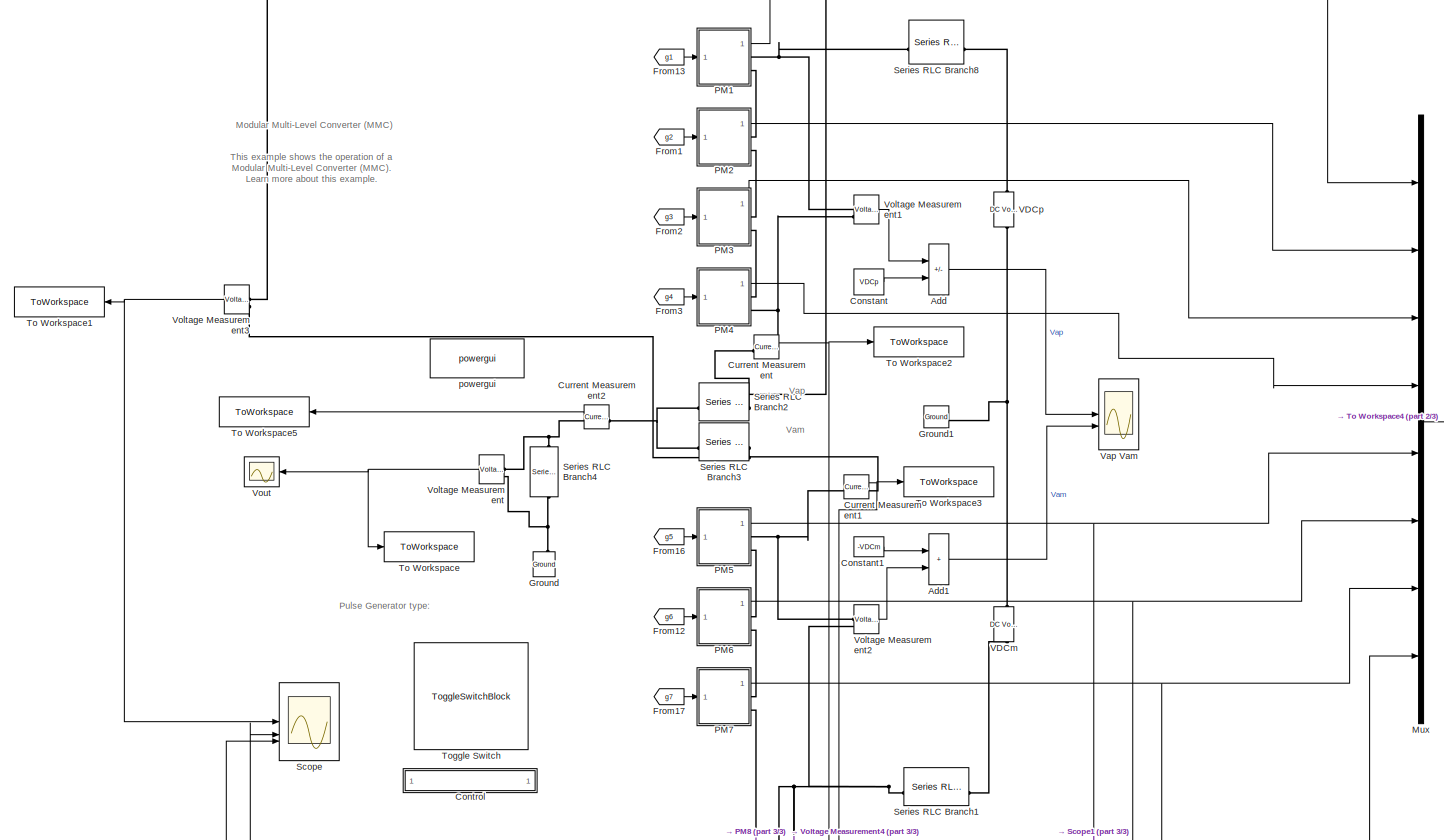
[diagram: root canvas - part 1/3, full width, middle band]
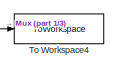
[diagram: root canvas - part 2/3, middle right region]
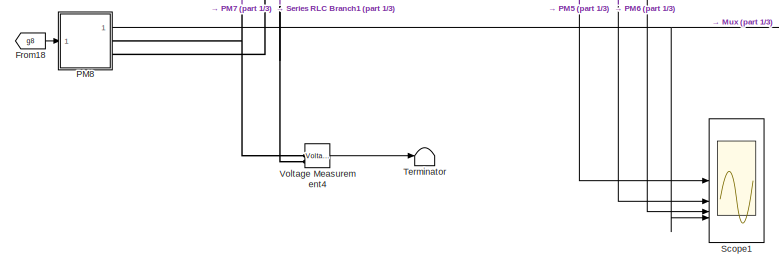
[diagram: root canvas - part 3/3, bottom center region]
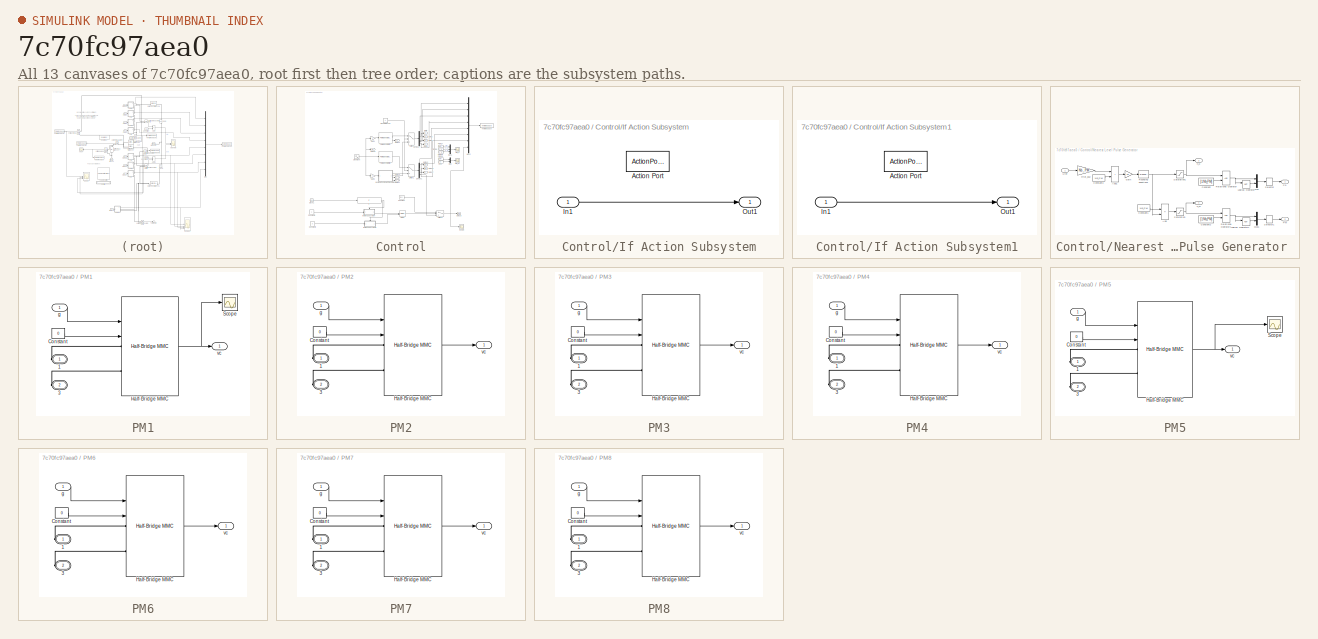
[diagram: thumbnail index - all 13 canvases of the model, root first then tree order]
MODEL slx_7c70fc97aea0
KIND model
CONFIG AbsTol = auto
CONFIG EnableMultiTasking = off
CONFIG FixedStep = auto
CONFIG MaxStep = auto
CONFIG MinStep = auto
CONFIG PreLoadFcn = % Nominal system frequency (Hz)\n    Fnom= 50; \n% Number of power module per half-arm                 \n    Nb_PM=4;\n% Nominal DC voltage of one module (V)                   \n    Vnom_PM=1000;    \n% Nominal voltage plus DC source          \n    VDCp= (Nb_PM*Vnom_PM)/2; \n% Nominal voltage minus DC source  \n    VDCm= VDCp;   \n% Power module capacitor (F)             \n    C_PM= 1e9; \n% Initial capacitor...<+248ch>
CONFIG RelTol = 1e-3
CONFIG SampleTimeConstraint = Unconstrained
CONFIG SolverName = FixedStepDiscrete
CONFIG StartTime = 0.0
CONFIG StopTime = 20
BLOCK [Sum] Add
  IconShape = rectangular
  Inputs = -+
BLOCK [Sum] Add1
  IconShape = rectangular
BLOCK [Constant] Constant
  Value = VDCp
BLOCK [Constant] Constant1
  Value = -VDCm
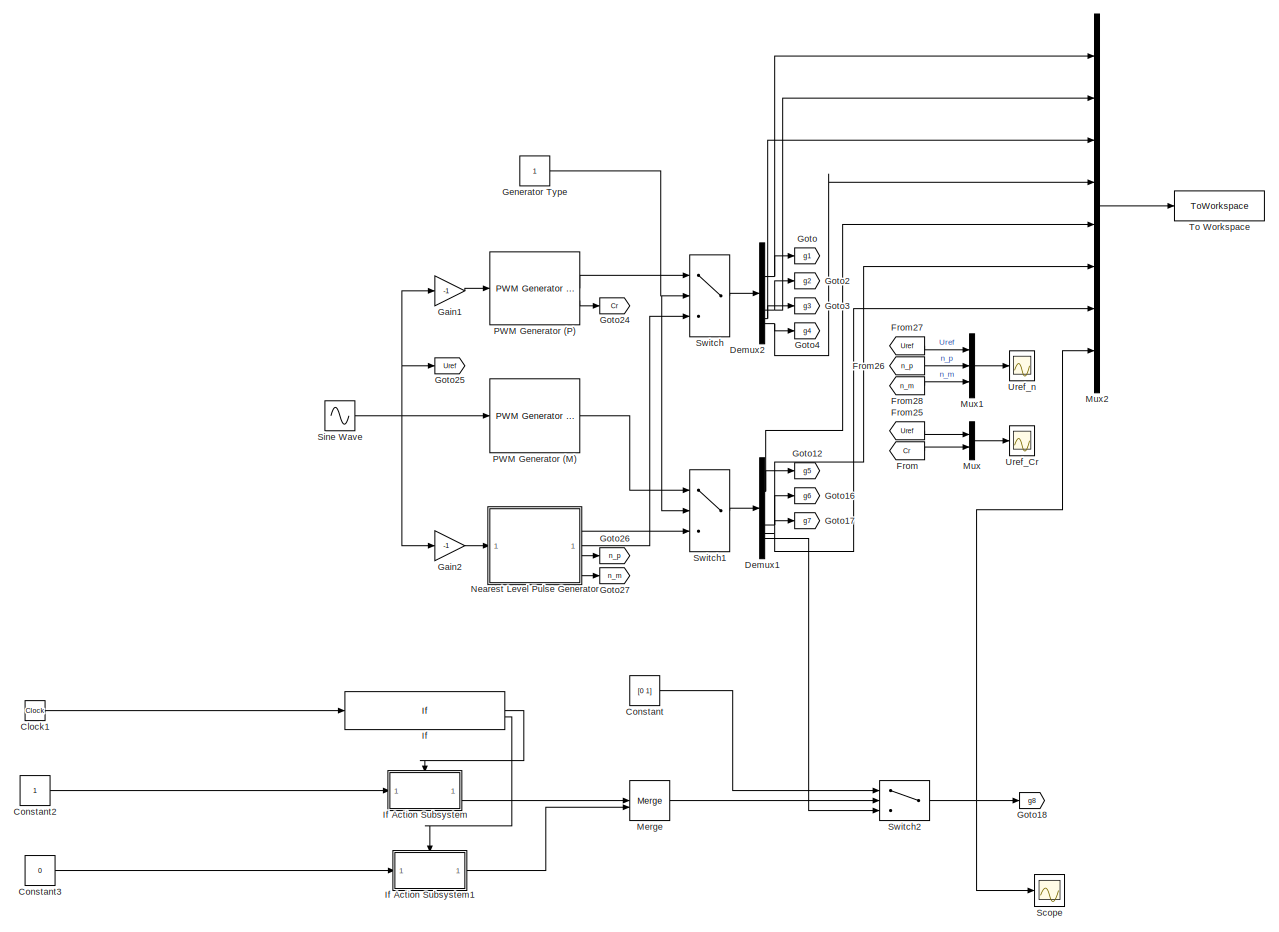
[diagram: Control - part 1/1, most of the canvas]
BLOCK [SubSystem] Control
BLOCK [Clock] Control/Clock1
BLOCK [Constant] Control/Constant
  Value = [0 1]
BLOCK [Constant] Control/Constant2
BLOCK [Constant] Control/Constant3
  Value = 0
BLOCK [Demux] Control/Demux1
  Outputs = Nb_PM
BLOCK [Demux] Control/Demux2
  Outputs = Nb_PM
BLOCK [From] Control/From
  GotoTag = Cr
  TagVisibility = global
BLOCK [From] Control/From25
  GotoTag = Uref
BLOCK [From] Control/From26
  GotoTag = n_p
  TagVisibility = global
BLOCK [From] Control/From27
  GotoTag = Uref
BLOCK [From] Control/From28
  GotoTag = n_m
  TagVisibility = global
BLOCK [Gain] Control/Gain1
  Gain = -1
BLOCK [Gain] Control/Gain2
  Gain = -1
BLOCK [Constant] Control/Generator Type
BLOCK [Goto] Control/Goto
  GotoTag = g1
  TagVisibility = global
BLOCK [Goto] Control/Goto12
  GotoTag = g5
  TagVisibility = global
BLOCK [Goto] Control/Goto16
  GotoTag = g6
  TagVisibility = global
BLOCK [Goto] Control/Goto17
  GotoTag = g7
  TagVisibility = global
BLOCK [Goto] Control/Goto18
  GotoTag = g8
  TagVisibility = global
BLOCK [Goto] Control/Goto2
  GotoTag = g2
  TagVisibility = global
BLOCK [Goto] Control/Goto24
  GotoTag = Cr
  TagVisibility = global
BLOCK [Goto] Control/Goto25
  GotoTag = Uref
BLOCK [Goto] Control/Goto26
  GotoTag = n_p
  TagVisibility = global
BLOCK [Goto] Control/Goto27
  GotoTag = n_m
  TagVisibility = global
BLOCK [Goto] Control/Goto3
  GotoTag = g3
  TagVisibility = global
BLOCK [Goto] Control/Goto4
  GotoTag = g4
  TagVisibility = global
BLOCK [If] Control/If
  IfExpression = u1 > 16.4 & u1 < 16.44
BLOCK [SubSystem] Control/If Action Subsystem
  TreatAsAtomicUnit = on
BLOCK [ActionPort] Control/If Action Subsystem/Action Port
  ActionPortLabel = if(u1 > 16.4 & u1 < 16.44)
BLOCK [Inport] Control/If Action Subsystem/In1
BLOCK [Outport] Control/If Action Subsystem/Out1
BLOCK [SubSystem] Control/If Action Subsystem1
  TreatAsAtomicUnit = on
BLOCK [ActionPort] Control/If Action Subsystem1/Action Port
  ActionPortLabel = else
BLOCK [Inport] Control/If Action Subsystem1/In1
BLOCK [Outport] Control/If Action Subsystem1/Out1
BLOCK [Merge] Control/Merge
BLOCK [Mux] Control/Mux
  DisplayOption = bar
  Inputs = 2
BLOCK [Mux] Control/Mux1
  DisplayOption = bar
  Inputs = 3
BLOCK [Mux] Control/Mux2
  DisplayOption = bar
  Inputs = 8
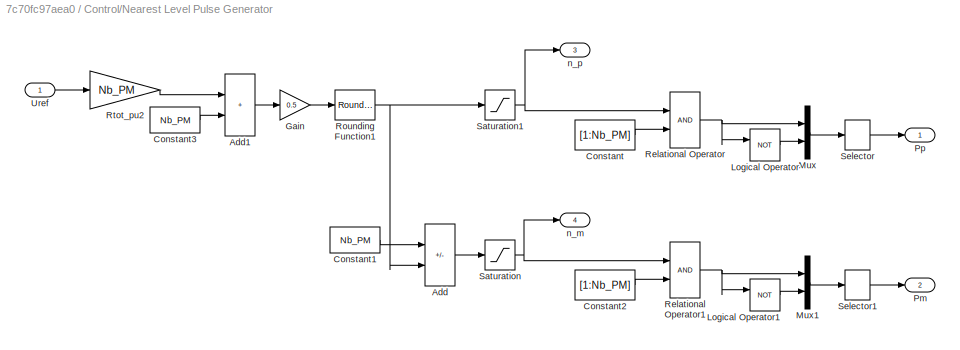
BLOCK [SubSystem] Control/Nearest Level Pulse Generator 
BLOCK [Sum] Control/Nearest Level Pulse Generator /Add
  IconShape = rectangular
  Inputs = +-
BLOCK [Sum] Control/Nearest Level Pulse Generator /Add1
  IconShape = rectangular
BLOCK [Constant] Control/Nearest Level Pulse Generator /Constant
  Value = [1:Nb_PM]
BLOCK [Constant] Control/Nearest Level Pulse Generator /Constant1
  Value = Nb_PM
BLOCK [Constant] Control/Nearest Level Pulse Generator /Constant2
  Value = [1:Nb_PM]
BLOCK [Constant] Control/Nearest Level Pulse Generator /Constant3
  Value = Nb_PM
BLOCK [Gain] Control/Nearest Level Pulse Generator /Gain
  Gain = 0.5
BLOCK [Logic] Control/Nearest Level Pulse Generator /Logical Operator
  AllPortsSameDT = off
  Operator = NOT
  OutDataTypeStr = float('double')
BLOCK [Logic] Control/Nearest Level Pulse Generator /Logical Operator1
  AllPortsSameDT = off
  Operator = NOT
  OutDataTypeStr = float('double')
BLOCK [Mux] Control/Nearest Level Pulse Generator /Mux
  DisplayOption = bar
  Inputs = 2
BLOCK [Mux] Control/Nearest Level Pulse Generator /Mux1
  DisplayOption = bar
  Inputs = 2
BLOCK [Outport] Control/Nearest Level Pulse Generator /Pm
  Port = 2
  VectorParamsAs1DForOutWhenUnconnected = off
BLOCK [Outport] Control/Nearest Level Pulse Generator /Pp
  VectorParamsAs1DForOutWhenUnconnected = off
BLOCK [RelationalOperator] Control/Nearest Level Pulse Generator /Relational Operator
  InputSameDT = off
  OutDataTypeStr = float('double')
BLOCK [RelationalOperator] Control/Nearest Level Pulse Generator /Relational Operator1
  InputSameDT = off
  OutDataTypeStr = float('double')
BLOCK [Rounding] Control/Nearest Level Pulse Generator /Rounding Function1
  Operator = round
BLOCK [Gain] Control/Nearest Level Pulse Generator /Rtot_pu2
  Gain = Nb_PM
  OutDataTypeStr = Inherit: Same as input
  ParamDataTypeStr = Inherit: Same as input
  SaturateOnIntegerOverflow = on
BLOCK [Saturate] Control/Nearest Level Pulse Generator /Saturation
  LowerLimit = 0
  UpperLimit = Nb_PM
BLOCK [Saturate] Control/Nearest Level Pulse Generator /Saturation1
  LowerLimit = 0
  UpperLimit = Nb_PM
BLOCK [Selector] Control/Nearest Level Pulse Generator /Selector
  IndexOptions = Index vector (dialog)
  Indices = [1 5 2 6 3 7 4 8]
  InputPortWidth = Nb_PM*2
  OutputSizes = 1
BLOCK [Selector] Control/Nearest Level Pulse Generator /Selector1
  IndexOptions = Index vector (dialog)
  Indices = [1 5 2 6 3 7 4 8]
  InputPortWidth = Nb_PM*2
  OutputSizes = 1
BLOCK [Inport] Control/Nearest Level Pulse Generator /Uref
BLOCK [Outport] Control/Nearest Level Pulse Generator /n_m
  Port = 4
  VectorParamsAs1DForOutWhenUnconnected = off
BLOCK [Outport] Control/Nearest Level Pulse Generator /n_p
  Port = 3
  VectorParamsAs1DForOutWhenUnconnected = off
BLOCK [Reference] Control/PWM Generator (M)  REF=spsPWMGeneratorMultilevelLib/PWM Generator
(Multilevel)
  LibrarySourceBlock = sps_lib/Power Electronics/Power Electronics Control/PWM Generator\n(Multilevel)
  SourceBlock = spsPWMGeneratorMultilevelLib/PWM Generator\n(Multilevel)
  SourceType = PWM Generator (Multilevel)
BLOCK [Reference] Control/PWM Generator (P)  REF=spsPWMGeneratorMultilevelLib/PWM Generator
(Multilevel)
  LibrarySourceBlock = sps_lib/Power Electronics/Power Electronics Control/PWM Generator\n(Multilevel)
  SourceBlock = spsPWMGeneratorMultilevelLib/PWM Generator\n(Multilevel)
  SourceType = PWM Generator (Multilevel)
BLOCK [Scope] Control/Scope
  Floating = off
  NumInputPorts = 1
  ScopeSpecificationString = Simulink.scopes.TimeScopeBlockCfg('CurrentConfiguration', extmgr.ConfigurationSet(extmgr.Configuration('Core','General UI',true),extmgr.Configuration('Core','Source UI',true),extmgr.Configuration('Sources','WiredSimulink',true,'DataLoggingVariableName','ScopeData1'),extmgr.Configuration('Visuals','Time Domain',true,'SerializedDisplays',{struct('MinYLimReal','-0.125','MaxYLimReal','1.125','YLabelRe...<+1414ch>
BLOCK [Sin] Control/Sine Wave
  Frequency = 2*pi*50
  SampleTime = Ts_Power
BLOCK [Switch] Control/Switch
  Criteria = u2 ~= 0
  InputSameDT = off
  SaturateOnIntegerOverflow = off
BLOCK [Switch] Control/Switch1
  Criteria = u2 ~= 0
  InputSameDT = off
  SaturateOnIntegerOverflow = off
BLOCK [Switch] Control/Switch2
  Criteria = u2 > Threshold
  InputSameDT = off
  SaturateOnIntegerOverflow = off
  Threshold = 0.8
BLOCK [ToWorkspace] Control/To Workspace
  FixptAsFi = on
  MaxDataPoints = inf
  SampleTime = -1
  SaveFormat = Timeseries
  VariableName = sw
BLOCK [Scope] Control/Uref_Cr
  Floating = off
  NumInputPorts = 1
  ScopeSpecificationString = Simulink.scopes.TimeScopeBlockCfg('CurrentConfiguration', extmgr.ConfigurationSet(extmgr.Configuration('Core','General UI',true),extmgr.Configuration('Core','Source UI',true),extmgr.Configuration('Sources','WiredSimulink',true,'DataLoggingVariableName','ScopeData1','DataLoggingLimitDataPoints',true,'DataLoggingSaveFormat','Array','DataLoggingDecimation','1','DataLoggingDecimateData',true),extmgr.C...<+165ch>
BLOCK [Scope] Control/Uref_n
  Floating = off
  NumInputPorts = 1
  ScopeSpecificationString = Simulink.scopes.TimeScopeBlockCfg('CurrentConfiguration', extmgr.ConfigurationSet(extmgr.Configuration('Core','General UI',true),extmgr.Configuration('Core','Source UI',true),extmgr.Configuration('Sources','WiredSimulink',true,'DataLoggingVariableName','ScopeData2','DataLoggingLimitDataPoints',true,'DataLoggingSaveFormat','Array','DataLoggingDecimation','1','DataLoggingDecimateData',true),extmgr.C...<+165ch>
BLOCK [Reference] Current Measurement  REF=spsCurrentMeasurementLib/Current Measurement
  LibrarySourceBlock = sps_lib/Sensors and Measurements/Current Measurement
  SourceBlock = spsCurrentMeasurementLib/Current Measurement
  SourceType = Current Measurement
  UserDataPersistent = on
BLOCK [Reference] Current Measurement1  REF=spsCurrentMeasurementLib/Current Measurement
  LibrarySourceBlock = sps_lib/Sensors and Measurements/Current Measurement
  SourceBlock = spsCurrentMeasurementLib/Current Measurement
  SourceType = Current Measurement
  UserDataPersistent = on
BLOCK [Reference] Current Measurement2  REF=spsCurrentMeasurementLib/Current Measurement
  LibrarySourceBlock = sps_lib/Sensors and Measurements/Current Measurement
  SourceBlock = spsCurrentMeasurementLib/Current Measurement
  SourceType = Current Measurement
  UserDataPersistent = on
BLOCK [From] From1
  GotoTag = g2
  TagVisibility = global
BLOCK [From] From12
  GotoTag = g6
  TagVisibility = global
BLOCK [From] From13
  GotoTag = g1
  TagVisibility = global
BLOCK [From] From16
  GotoTag = g5
  TagVisibility = global
BLOCK [From] From17
  GotoTag = g7
  TagVisibility = global
BLOCK [From] From18
  GotoTag = g8
  TagVisibility = global
BLOCK [From] From2
  GotoTag = g3
  TagVisibility = global
BLOCK [From] From3
  GotoTag = g4
  TagVisibility = global
BLOCK [Reference] Ground  REF=spsGroundLib/Ground
  LibrarySourceBlock = sps_lib/Utilities/Ground
  NameLocation = right
  SourceBlock = spsGroundLib/Ground
  SourceType = Ground
BLOCK [Reference] Ground1  REF=spsGroundLib/Ground
  LibrarySourceBlock = sps_lib/Utilities/Ground
  SourceBlock = spsGroundLib/Ground
  SourceType = Ground
BLOCK [Mux] Mux
  DisplayOption = bar
  Inputs = 8
BLOCK [SubSystem] PM1
BLOCK [PMIOPort] PM1/1
  Side = Right
  Tag = PMCPort
BLOCK [PMIOPort] PM1/3
  Port = 2
  Side = Right
  Tag = PMCPort
BLOCK [Constant] PM1/Constant
  Value = 0
BLOCK [Reference] PM1/Half-Bridge MMC  REF=spsHalfBridgeMMCLib/Half-Bridge MMC
  LibrarySourceBlock = sps_lib/Power Electronics/Half-Bridge MMC
  SourceBlock = spsHalfBridgeMMCLib/Half-Bridge MMC
  SourceType = Half-Bridge MMC
BLOCK [Scope] PM1/Scope
  Floating = off
  NumInputPorts = 1
  ScopeSpecificationString = Simulink.scopes.TimeScopeBlockCfg('CurrentConfiguration', extmgr.ConfigurationSet(extmgr.Configuration('Core','General UI',true),extmgr.Configuration('Core','Source UI',true),extmgr.Configuration('Sources','WiredSimulink',true,'DataLoggingVariableName','ScopeData1'),extmgr.Configuration('Visuals','Time Domain',true,'SerializedDisplays',{struct('MinYLimReal','999.999848626','MaxYLimReal','999.99984...<+1483ch>
BLOCK [Inport] PM1/g
  PortDimensions = 2
BLOCK [Outport] PM1/vc
BLOCK [SubSystem] PM2
BLOCK [PMIOPort] PM2/1
  Side = Right
  Tag = PMCPort
BLOCK [PMIOPort] PM2/3
  Port = 2
  Side = Right
  Tag = PMCPort
BLOCK [Constant] PM2/Constant
  Value = 0
BLOCK [Reference] PM2/Half-Bridge MMC  REF=spsHalfBridgeMMCLib/Half-Bridge MMC
  LibrarySourceBlock = sps_lib/Power Electronics/Half-Bridge MMC
  SourceBlock = spsHalfBridgeMMCLib/Half-Bridge MMC
  SourceType = Half-Bridge MMC
BLOCK [Inport] PM2/g
  PortDimensions = 2
BLOCK [Outport] PM2/vc
BLOCK [SubSystem] PM3
BLOCK [PMIOPort] PM3/1
  Side = Right
  Tag = PMCPort
BLOCK [PMIOPort] PM3/3
  Port = 2
  Side = Right
  Tag = PMCPort
BLOCK [Constant] PM3/Constant
  Value = 0
BLOCK [Reference] PM3/Half-Bridge MMC  REF=spsHalfBridgeMMCLib/Half-Bridge MMC
  LibrarySourceBlock = sps_lib/Power Electronics/Half-Bridge MMC
  SourceBlock = spsHalfBridgeMMCLib/Half-Bridge MMC
  SourceType = Half-Bridge MMC
BLOCK [Inport] PM3/g
  PortDimensions = 2
BLOCK [Outport] PM3/vc
BLOCK [SubSystem] PM4
BLOCK [PMIOPort] PM4/1
  Side = Right
  Tag = PMCPort
BLOCK [PMIOPort] PM4/3
  Port = 2
  Side = Right
  Tag = PMCPort
BLOCK [Constant] PM4/Constant
  Value = 0
BLOCK [Reference] PM4/Half-Bridge MMC  REF=spsHalfBridgeMMCLib/Half-Bridge MMC
  LibrarySourceBlock = sps_lib/Power Electronics/Half-Bridge MMC
  SourceBlock = spsHalfBridgeMMCLib/Half-Bridge MMC
  SourceType = Half-Bridge MMC
BLOCK [Inport] PM4/g
  PortDimensions = 2
BLOCK [Outport] PM4/vc
BLOCK [SubSystem] PM5
BLOCK [PMIOPort] PM5/1
  Side = Right
  Tag = PMCPort
BLOCK [PMIOPort] PM5/3
  Port = 2
  Side = Right
  Tag = PMCPort
BLOCK [Constant] PM5/Constant
  Value = 0
BLOCK [Reference] PM5/Half-Bridge MMC  REF=spsHalfBridgeMMCLib/Half-Bridge MMC
  LibrarySourceBlock = sps_lib/Power Electronics/Half-Bridge MMC
  SourceBlock = spsHalfBridgeMMCLib/Half-Bridge MMC
  SourceType = Half-Bridge MMC
BLOCK [Scope] PM5/Scope
  Floating = off
  NumInputPorts = 1
  ScopeSpecificationString = Simulink.scopes.TimeScopeBlockCfg('CurrentConfiguration', extmgr.ConfigurationSet(extmgr.Configuration('Core','General UI',true),extmgr.Configuration('Core','Source UI',true),extmgr.Configuration('Sources','WiredSimulink',true,'DataLoggingVariableName','ScopeData3'),extmgr.Configuration('Visuals','Time Domain',true,'SerializedDisplays',{struct('MinYLimReal','999.999944','MaxYLimReal','1000.000007'...<+1438ch>
BLOCK [Inport] PM5/g
  PortDimensions = 2
BLOCK [Outport] PM5/vc
BLOCK [SubSystem] PM6
BLOCK [PMIOPort] PM6/1
  Side = Right
  Tag = PMCPort
BLOCK [PMIOPort] PM6/3
  Port = 2
  Side = Right
  Tag = PMCPort
BLOCK [Constant] PM6/Constant
  Value = 0
BLOCK [Reference] PM6/Half-Bridge MMC  REF=spsHalfBridgeMMCLib/Half-Bridge MMC
  LibrarySourceBlock = sps_lib/Power Electronics/Half-Bridge MMC
  SourceBlock = spsHalfBridgeMMCLib/Half-Bridge MMC
  SourceType = Half-Bridge MMC
BLOCK [Inport] PM6/g
  PortDimensions = 2
BLOCK [Outport] PM6/vc
BLOCK [SubSystem] PM7
BLOCK [PMIOPort] PM7/1
  Side = Right
  Tag = PMCPort
BLOCK [PMIOPort] PM7/3
  Port = 2
  Side = Right
  Tag = PMCPort
BLOCK [Constant] PM7/Constant
  Value = 0
BLOCK [Reference] PM7/Half-Bridge MMC  REF=spsHalfBridgeMMCLib/Half-Bridge MMC
  LibrarySourceBlock = sps_lib/Power Electronics/Half-Bridge MMC
  SourceBlock = spsHalfBridgeMMCLib/Half-Bridge MMC
  SourceType = Half-Bridge MMC
BLOCK [Inport] PM7/g
  PortDimensions = 2
BLOCK [Outport] PM7/vc
BLOCK [SubSystem] PM8
BLOCK [PMIOPort] PM8/1
  Side = Right
  Tag = PMCPort
BLOCK [PMIOPort] PM8/3
  Port = 2
  Side = Right
  Tag = PMCPort
BLOCK [Constant] PM8/Constant
  Value = 0
BLOCK [Reference] PM8/Half-Bridge MMC  REF=spsHalfBridgeMMCLib/Half-Bridge MMC
  LibrarySourceBlock = sps_lib/Power Electronics/Half-Bridge MMC
  SourceBlock = spsHalfBridgeMMCLib/Half-Bridge MMC
  SourceType = Half-Bridge MMC
BLOCK [Inport] PM8/g
  PortDimensions = 2
BLOCK [Outport] PM8/vc
BLOCK [Scope] Scope
  Floating = off
  NumInputPorts = 3
  ScopeSpecificationString = Simulink.scopes.TimeScopeBlockCfg('CurrentConfiguration', extmgr.ConfigurationSet(extmgr.Configuration('Core','General UI',true),extmgr.Configuration('Core','Source UI',true),extmgr.Configuration('Sources','WiredSimulink',true,'DataLoggingVariableName','ScopeData2'),extmgr.Configuration('Visuals','Time Domain',true,'SerializedDisplays',{struct('MinYLimReal','-4318.19306','MaxYLimReal','2500.12116'...<+2904ch>
BLOCK [Scope] Scope1
  Floating = off
  NumInputPorts = 4
  ScopeSpecificationString = Simulink.scopes.TimeScopeBlockCfg('CurrentConfiguration', extmgr.ConfigurationSet(extmgr.Configuration('Core','General UI',true),extmgr.Configuration('Core','Source UI',true),extmgr.Configuration('Sources','WiredSimulink',true,'DataLoggingVariableName','ScopeData1'),extmgr.Configuration('Visuals','Time Domain',true,'SerializedDisplays',{struct('MinYLimReal','893.64081','MaxYLimReal','1557.16429','...<+3496ch>
BLOCK [Reference] Series RLC Branch1  REF=spsSeriesRLCBranchLib/Series RLC Branch
  LibrarySourceBlock = sps_lib/Passives/Series RLC Branch
  NameLocation = top
  SourceBlock = spsSeriesRLCBranchLib/Series RLC Branch
  SourceType = Series RLC Branch
BLOCK [Reference] Series RLC Branch2  REF=spsSeriesRLCBranchLib/Series RLC Branch
  LibrarySourceBlock = sps_lib/Passives/Series RLC Branch
  NameLocation = top
  SourceBlock = spsSeriesRLCBranchLib/Series RLC Branch
  SourceType = Series RLC Branch
BLOCK [Reference] Series RLC Branch3  REF=spsSeriesRLCBranchLib/Series RLC Branch
  LibrarySourceBlock = sps_lib/Passives/Series RLC Branch
  NameLocation = top
  SourceBlock = spsSeriesRLCBranchLib/Series RLC Branch
  SourceType = Series RLC Branch
BLOCK [Reference] Series RLC Branch4  REF=spsSeriesRLCBranchLib/Series RLC Branch
  LibrarySourceBlock = sps_lib/Passives/Series RLC Branch
  NameLocation = right
  SourceBlock = spsSeriesRLCBranchLib/Series RLC Branch
  SourceType = Series RLC Branch
BLOCK [Reference] Series RLC Branch8  REF=spsSeriesRLCBranchLib/Series RLC Branch
  LibrarySourceBlock = sps_lib/Passives/Series RLC Branch
  NameLocation = top
  SourceBlock = spsSeriesRLCBranchLib/Series RLC Branch
  SourceType = Series RLC Branch
BLOCK [Terminator] Terminator
BLOCK [ToWorkspace] To Workspace
  FixptAsFi = on
  MaxDataPoints = inf
  SampleTime = -1
  SaveFormat = Timeseries
  VariableName = vout
BLOCK [ToWorkspace] To Workspace1
  FixptAsFi = on
  MaxDataPoints = inf
  SampleTime = -1
  SaveFormat = Timeseries
  VariableName = Vab
BLOCK [ToWorkspace] To Workspace2
  FixptAsFi = on
  MaxDataPoints = inf
  SampleTime = -1
  SaveFormat = Timeseries
  VariableName = i1
BLOCK [ToWorkspace] To Workspace3
  FixptAsFi = on
  MaxDataPoints = inf
  SampleTime = -1
  SaveFormat = Timeseries
  VariableName = i2
BLOCK [ToWorkspace] To Workspace4
  FixptAsFi = on
  MaxDataPoints = inf
  SampleTime = -1
  Save2DSignal = 2-D array (concatenate along first dimension)
  SaveFormat = Timeseries
  VariableName = vc
BLOCK [ToWorkspace] To Workspace5
  FixptAsFi = on
  MaxDataPoints = inf
  SampleTime = -1
  SaveFormat = Timeseries
  VariableName = iout
BLOCK [ToggleSwitchBlock] Toggle Switch
  LabelPosition = Hide
BLOCK [Reference] VDCm  REF=spsDCVoltageSourceLib/DC Voltage Source
  LibrarySourceBlock = sps_lib/Sources/DC Voltage Source
  NameLocation = right
  SourceBlock = spsDCVoltageSourceLib/DC Voltage Source
  SourceType = DC Voltage Source
BLOCK [Reference] VDCp  REF=spsDCVoltageSourceLib/DC Voltage Source
  LibrarySourceBlock = sps_lib/Sources/DC Voltage Source
  NameLocation = right
  SourceBlock = spsDCVoltageSourceLib/DC Voltage Source
  SourceType = DC Voltage Source
BLOCK [Scope] Vap Vam
  Floating = off
  NumInputPorts = 2
  ScopeSpecificationString = Simulink.scopes.TimeScopeBlockCfg('CurrentConfiguration', extmgr.ConfigurationSet(extmgr.Configuration('Core','General UI',true),extmgr.Configuration('Core','Source UI',true),extmgr.Configuration('Sources','WiredSimulink',true,'DataLoggingVariableName','Vap_Vam','DataLogging',true,'DataLoggingSaveFormat','StructureWithTime'),extmgr.Configuration('Visuals','Time Domain',true,'SerializedDisplays',{s...<+2262ch>
BLOCK [Reference] Voltage Measurement  REF=spsVoltageMeasurementLib/Voltage Measurement
  LibrarySourceBlock = sps_lib/Sensors and Measurements/Voltage Measurement
  SourceBlock = spsVoltageMeasurementLib/Voltage Measurement
  SourceType = Voltage Measurement
  UserDataPersistent = on
BLOCK [Reference] Voltage Measurement1  REF=spsVoltageMeasurementLib/Voltage Measurement
  LibrarySourceBlock = sps_lib/Sensors and Measurements/Voltage Measurement
  SourceBlock = spsVoltageMeasurementLib/Voltage Measurement
  SourceType = Voltage Measurement
  UserDataPersistent = on
BLOCK [Reference] Voltage Measurement2  REF=spsVoltageMeasurementLib/Voltage Measurement
  LibrarySourceBlock = sps_lib/Sensors and Measurements/Voltage Measurement
  SourceBlock = spsVoltageMeasurementLib/Voltage Measurement
  SourceType = Voltage Measurement
  UserDataPersistent = on
BLOCK [Reference] Voltage Measurement3  REF=spsVoltageMeasurementLib/Voltage Measurement
  LibrarySourceBlock = sps_lib/Sensors and Measurements/Voltage Measurement
  SourceBlock = spsVoltageMeasurementLib/Voltage Measurement
  SourceType = Voltage Measurement
  UserDataPersistent = on
BLOCK [Reference] Voltage Measurement4  REF=spsVoltageMeasurementLib/Voltage Measurement
  LibrarySourceBlock = sps_lib/Sensors and Measurements/Voltage Measurement
  SourceBlock = spsVoltageMeasurementLib/Voltage Measurement
  SourceType = Voltage Measurement
  UserDataPersistent = on
BLOCK [Scope] Vout
  Floating = off
  NumInputPorts = 1
  ScopeSpecificationString = Simulink.scopes.TimeScopeBlockCfg('CurrentConfiguration', extmgr.ConfigurationSet(extmgr.Configuration('Core','General UI',true),extmgr.Configuration('Core','Source UI',true),extmgr.Configuration('Sources','WiredSimulink',true,'DataLoggingVariableName','Vout','DataLogging',true,'DataLoggingSaveFormat','StructureWithTime'),extmgr.Configuration('Visuals','Time Domain',true,'SerializedDisplays',{stru...<+1693ch>
BLOCK [Reference] powergui  REF=sps_lib/powergui
  LibrarySourceBlock = sps_lib/powergui
  Priority = 1
  SourceBlock = sps_lib/powergui
  SourceType = PSB option menu block
ANNOTATION (root): Pulse Generator type:
ANNOTATION (root): This example shows the operation of a Modular Multi-Level Converter (MMC). Learn more about this example.
ANNOTATION (root): Modular Multi-Level Converter (MMC)
ANNOTATION (root): Vam
ANNOTATION (root): Vap
LINE Add1:1 -> Vap Vam:2
LINE Add:1 -> Vap Vam:1
LINE Constant1:1 -> Add1:1
LINE Constant:1 -> Add:2
LINE Control/Clock1:1 -> Control/If:1
LINE Control/Constant2:1 -> Control/If Action Subsystem:1
LINE Control/Constant3:1 -> Control/If Action Subsystem1:1
LINE Control/Constant:1 -> Control/Switch2:1
NET Control/Demux1:1 -> Control/Goto12:1, Control/Mux2:5
NET Control/Demux1:2 -> Control/Goto16:1, Control/Mux2:6
NET Control/Demux1:3 -> Control/Goto17:1, Control/Mux2:7
LINE Control/Demux1:4 -> Control/Switch2:3
NET Control/Demux2:1 -> Control/Goto:1, Control/Mux2:1
NET Control/Demux2:2 -> Control/Goto2:1, Control/Mux2:2
NET Control/Demux2:3 -> Control/Goto3:1, Control/Mux2:3
NET Control/Demux2:4 -> Control/Goto4:1, Control/Mux2:4
LINE Control/From25:1 -> Control/Mux:1
LINE Control/From26:1 -> Control/Mux1:2
LINE Control/From27:1 -> Control/Mux1:1
LINE Control/From28:1 -> Control/Mux1:3
LINE Control/From:1 -> Control/Mux:2
LINE Control/Gain1:1 -> Control/PWM Generator (P):1
LINE Control/Gain2:1 -> Control/Nearest Level Pulse Generator :1
NET Control/Generator Type:1 -> Control/Switch1:2, Control/Switch:2
LINE Control/If Action Subsystem/In1:1 -> Control/If Action Subsystem/Out1:1
LINE Control/If Action Subsystem1/In1:1 -> Control/If Action Subsystem1/Out1:1
LINE Control/If Action Subsystem1:1 -> Control/Merge:2
LINE Control/If Action Subsystem:1 -> Control/Merge:1
LINE Control/If:1 -> Control/If Action Subsystem:ifaction
LINE Control/If:2 -> Control/If Action Subsystem1:ifaction
LINE Control/Merge:1 -> Control/Switch2:2
LINE Control/Mux1:1 -> Control/Uref_n:1
LINE Control/Mux2:1 -> Control/To Workspace:1
LINE Control/Mux:1 -> Control/Uref_Cr:1
LINE Control/Nearest Level Pulse Generator /Add1:1 -> Control/Nearest Level Pulse Generator /Gain:1
LINE Control/Nearest Level Pulse Generator /Add:1 -> Control/Nearest Level Pulse Generator /Saturation:1
LINE Control/Nearest Level Pulse Generator /Constant1:1 -> Control/Nearest Level Pulse Generator /Add:1
LINE Control/Nearest Level Pulse Generator /Constant2:1 -> Control/Nearest Level Pulse Generator /Relational Operator1:2
LINE Control/Nearest Level Pulse Generator /Constant3:1 -> Control/Nearest Level Pulse Generator /Add1:2
LINE Control/Nearest Level Pulse Generator /Constant:1 -> Control/Nearest Level Pulse Generator /Relational Operator:2
LINE Control/Nearest Level Pulse Generator /Gain:1 -> Control/Nearest Level Pulse Generator /Rounding Function1:1
LINE Control/Nearest Level Pulse Generator /Logical Operator1:1 -> Control/Nearest Level Pulse Generator /Mux1:2
LINE Control/Nearest Level Pulse Generator /Logical Operator:1 -> Control/Nearest Level Pulse Generator /Mux:2
LINE Control/Nearest Level Pulse Generator /Mux1:1 -> Control/Nearest Level Pulse Generator /Selector1:1
LINE Control/Nearest Level Pulse Generator /Mux:1 -> Control/Nearest Level Pulse Generator /Selector:1
NET Control/Nearest Level Pulse Generator /Relational Operator1:1 -> Control/Nearest Level Pulse Generator /Logical Operator1:1, Control/Nearest Level Pulse Generator /Mux1:1
NET Control/Nearest Level Pulse Generator /Relational Operator:1 -> Control/Nearest Level Pulse Generator /Logical Operator:1, Control/Nearest Level Pulse Generator /Mux:1
NET Control/Nearest Level Pulse Generator /Rounding Function1:1 -> Control/Nearest Level Pulse Generator /Add:2, Control/Nearest Level Pulse Generator /Saturation1:1
LINE Control/Nearest Level Pulse Generator /Rtot_pu2:1 -> Control/Nearest Level Pulse Generator /Add1:1
NET Control/Nearest Level Pulse Generator /Saturation1:1 -> Control/Nearest Level Pulse Generator /Relational Operator:1, Control/Nearest Level Pulse Generator /n_p:1
NET Control/Nearest Level Pulse Generator /Saturation:1 -> Control/Nearest Level Pulse Generator /Relational Operator1:1, Control/Nearest Level Pulse Generator /n_m:1
LINE Control/Nearest Level Pulse Generator /Selector1:1 -> Control/Nearest Level Pulse Generator /Pm:1
LINE Control/Nearest Level Pulse Generator /Selector:1 -> Control/Nearest Level Pulse Generator /Pp:1
LINE Control/Nearest Level Pulse Generator /Uref:1 -> Control/Nearest Level Pulse Generator /Rtot_pu2:1
LINE Control/Nearest Level Pulse Generator :1 -> Control/Switch:3
LINE Control/Nearest Level Pulse Generator :2 -> Control/Switch1:3
LINE Control/Nearest Level Pulse Generator :3 -> Control/Goto26:1
LINE Control/Nearest Level Pulse Generator :4 -> Control/Goto27:1
LINE Control/PWM Generator (M):1 -> Control/Switch1:1
LINE Control/PWM Generator (P):1 -> Control/Switch:1
LINE Control/PWM Generator (P):2 -> Control/Goto24:1
NET Control/Sine Wave:1 -> Control/Gain1:1, Control/Gain2:1, Control/Goto25:1, Control/PWM Generator (M):1
LINE Control/Switch1:1 -> Control/Demux1:1
NET Control/Switch2:1 -> Control/Goto18:1, Control/Mux2:8, Control/Scope:1
LINE Control/Switch:1 -> Control/Demux2:1
NET Current Measurement1:1 -> Scope:3, To Workspace3:1
LINE Current Measurement2:1 -> To Workspace5:1
NET Current Measurement:1 -> Scope:2, To Workspace2:1
LINE From12:1 -> PM6:1
LINE From13:1 -> PM1:1
LINE From16:1 -> PM5:1
LINE From17:1 -> PM7:1
LINE From18:1 -> PM8:1
LINE From1:1 -> PM2:1
LINE From2:1 -> PM3:1
LINE From3:1 -> PM4:1
LINE Mux:1 -> To Workspace4:1
LINE PM1/Constant:1 -> PM1/Half-Bridge MMC:2
NET PM1/Half-Bridge MMC:1 -> PM1/Scope:1, PM1/vc:1
LINE PM1/g:1 -> PM1/Half-Bridge MMC:1
LINE PM1:1 -> Mux:1
LINE PM2/Constant:1 -> PM2/Half-Bridge MMC:2
LINE PM2/Half-Bridge MMC:1 -> PM2/vc:1
LINE PM2/g:1 -> PM2/Half-Bridge MMC:1
LINE PM2:1 -> Mux:2
LINE PM3/Constant:1 -> PM3/Half-Bridge MMC:2
LINE PM3/Half-Bridge MMC:1 -> PM3/vc:1
LINE PM3/g:1 -> PM3/Half-Bridge MMC:1
LINE PM3:1 -> Mux:3
LINE PM4/Constant:1 -> PM4/Half-Bridge MMC:2
LINE PM4/Half-Bridge MMC:1 -> PM4/vc:1
LINE PM4/g:1 -> PM4/Half-Bridge MMC:1
LINE PM4:1 -> Mux:4
LINE PM5/Constant:1 -> PM5/Half-Bridge MMC:2
NET PM5/Half-Bridge MMC:1 -> PM5/Scope:1, PM5/vc:1
LINE PM5/g:1 -> PM5/Half-Bridge MMC:1
NET PM5:1 -> Mux:5, Scope1:1
LINE PM6/Constant:1 -> PM6/Half-Bridge MMC:2
LINE PM6/Half-Bridge MMC:1 -> PM6/vc:1
LINE PM6/g:1 -> PM6/Half-Bridge MMC:1
NET PM6:1 -> Mux:6, Scope1:2
LINE PM7/Constant:1 -> PM7/Half-Bridge MMC:2
LINE PM7/Half-Bridge MMC:1 -> PM7/vc:1
LINE PM7/g:1 -> PM7/Half-Bridge MMC:1
NET PM7:1 -> Mux:7, Scope1:3
LINE PM8/Constant:1 -> PM8/Half-Bridge MMC:2
LINE PM8/Half-Bridge MMC:1 -> PM8/vc:1
LINE PM8/g:1 -> PM8/Half-Bridge MMC:1
NET PM8:1 -> Mux:8, Scope1:4
LINE Voltage Measurement1:1 -> Add:1
LINE Voltage Measurement2:1 -> Add1:2
NET Voltage Measurement3:1 -> Scope:1, To Workspace1:1
LINE Voltage Measurement4:1 -> Terminator:1
NET Voltage Measurement:1 -> To Workspace:1, Vout:1
PNET net1: Current Measurement1:LConn1 -- PM5:RConn1 -- Voltage Measurement2:LConn1
PNET net2: Current Measurement1:RConn1 -- Series RLC Branch3:LConn1 -- Voltage Measurement3:LConn2
PNET net3: Current Measurement2:LConn1 -- Series RLC Branch2:RConn1 -- Series RLC Branch3:RConn1
PNET net4: Current Measurement2:RConn1 -- Series RLC Branch4:RConn1 -- Voltage Measurement:LConn1
PNET net5: Current Measurement:LConn1 -- Series RLC Branch2:LConn1 -- Voltage Measurement3:LConn1
PNET net6: Current Measurement:RConn1 -- PM4:RConn2 -- Voltage Measurement1:LConn2
PNET net7: Ground1:LConn1 -- VDCm:RConn1 -- VDCp:LConn1
PNET net8: Ground:LConn1 -- Series RLC Branch4:LConn1 -- Voltage Measurement:LConn2
PLINE PM1/1:RConn1 -- PM1/Half-Bridge MMC:LConn1
PLINE PM1/3:RConn1 -- PM1/Half-Bridge MMC:LConn2
PNET net9: PM1:RConn1 -- Series RLC Branch8:RConn1 -- Voltage Measurement1:LConn1
PLINE PM1:RConn2 -- PM2:RConn1
PLINE PM2/1:RConn1 -- PM2/Half-Bridge MMC:LConn1
PLINE PM2/3:RConn1 -- PM2/Half-Bridge MMC:LConn2
PLINE PM2:RConn2 -- PM3:RConn1
PLINE PM3/1:RConn1 -- PM3/Half-Bridge MMC:LConn1
PLINE PM3/3:RConn1 -- PM3/Half-Bridge MMC:LConn2
PLINE PM3:RConn2 -- PM4:RConn1
PLINE PM4/1:RConn1 -- PM4/Half-Bridge MMC:LConn1
PLINE PM4/3:RConn1 -- PM4/Half-Bridge MMC:LConn2
PLINE PM5/1:RConn1 -- PM5/Half-Bridge MMC:LConn1
PLINE PM5/3:RConn1 -- PM5/Half-Bridge MMC:LConn2
PLINE PM5:RConn2 -- PM6:RConn1
PLINE PM6/1:RConn1 -- PM6/Half-Bridge MMC:LConn1
PLINE PM6/3:RConn1 -- PM6/Half-Bridge MMC:LConn2
PLINE PM6:RConn2 -- PM7:RConn1
PLINE PM7/1:RConn1 -- PM7/Half-Bridge MMC:LConn1
PLINE PM7/3:RConn1 -- PM7/Half-Bridge MMC:LConn2
PNET net10: PM7:RConn2 -- PM8:RConn1 -- Voltage Measurement4:LConn1
PLINE PM8/1:RConn1 -- PM8/Half-Bridge MMC:LConn1
PLINE PM8/3:RConn1 -- PM8/Half-Bridge MMC:LConn2
PNET net11: PM8:RConn2 -- Series RLC Branch1:RConn1 -- Voltage Measurement2:LConn2 -- Voltage Measurement4:LConn2
PLINE Series RLC Branch1:LConn1 -- VDCm:LConn1
PLINE Series RLC Branch8:LConn1 -- VDCp:RConn1
note: NET lines group one-source signal fan-out (src -> all destinations, sorted); 1:1 wires keep LINE; PNET lines group multi-terminal physical nets as a canonical sorted terminal list (undirected conserving connections); 2-terminal nets keep the pairwise PLINE form
